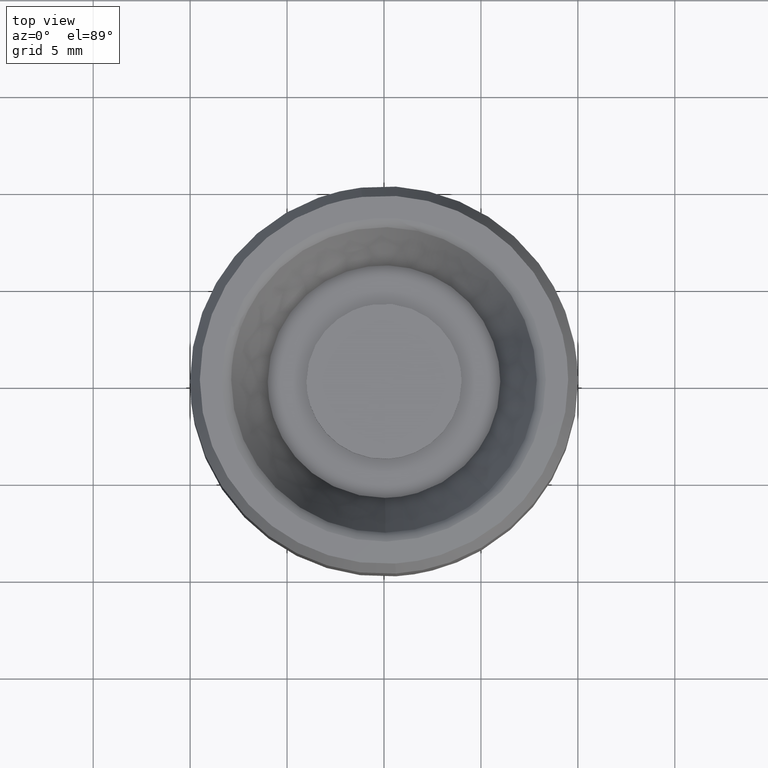
[diagram: clean part render]
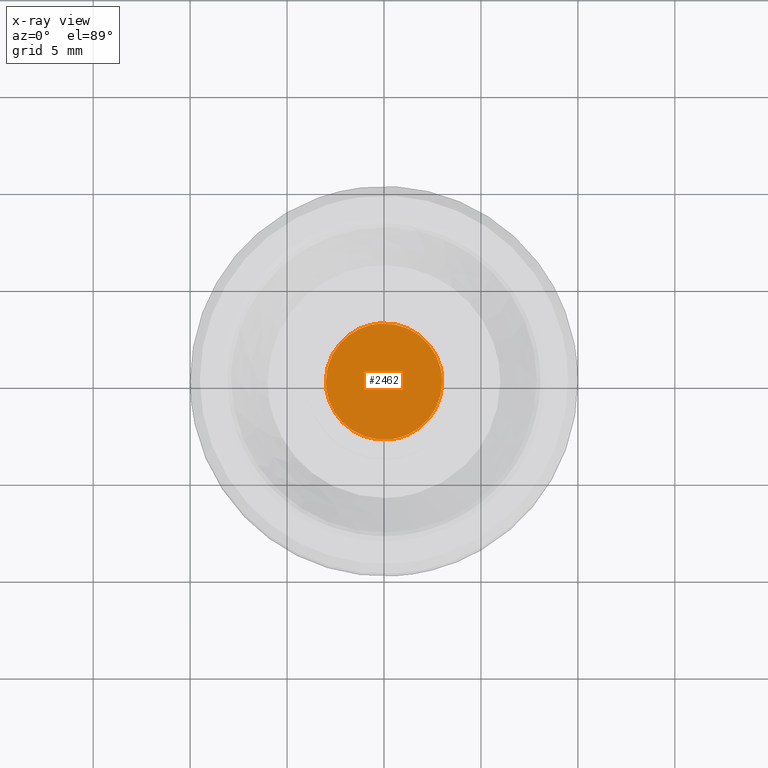
[diagram: x-ray — body ghosted, one internal face saturated and labeled with its STEP entity id]
A machine part, top view, then the same camera in x-ray: the body is ghosted and one INTERNAL B-rep face — a face not visible from any outside direction — is saturated and labeled: STEP entity #2462.
In plain terms, the highlighted face is a freeform B-spline surface patch.
Its self-contained STEP definition (entity closure, byte-faithful):
#1085=CARTESIAN_POINT('',(0.354102703987637,-2.979028579088936,9.500000000000000));
#1086=VERTEX_POINT('',#1085);
#1087=CARTESIAN_POINT('',(-3.0,0.0,9.500000000000000));
#1088=VERTEX_POINT('',#1087);
#1089=CARTESIAN_POINT('',(0.354102703987637,-2.979028579088936,9.500000000000000));
#1090=CARTESIAN_POINT('',(0.177672358973275,-3.000000000000000,9.500000000000000));
#1091=CARTESIAN_POINT('',(0.0,-3.0,9.500000000000000));
#1092=CARTESIAN_POINT('',(-3.0,-3.0,9.500000000000000));
#1093=CARTESIAN_POINT('',(-3.0,0.0,9.500000000000000));
#1101=(BOUNDED_CURVE()B_SPLINE_CURVE(2,(#1089,#1090,#1091,#1092,#1093),.UNSPECIFIED.,.F.,.U.)B_SPLINE_CURVE_WITH_KNOTS((3,2,3),(0.229562473513674,0.250000000000000,0.500000000000000),.UNSPECIFIED.)CURVE()GEOMETRIC_REPRESENTATION_ITEM()RATIONAL_B_SPLINE_CURVE((0.956026754184025,0.976055948331340,1.0,0.707106781186548,1.0))REPRESENTATION_ITEM(''));
#1102=EDGE_CURVE('',#1086,#1088,#1101,.T.);
#1143=CARTESIAN_POINT('',(-0.183145001911788,2.994404432984020,9.500000000000000));
#1144=VERTEX_POINT('',#1143);
#1150=CARTESIAN_POINT('',(-3.0,0.0,9.500000000000000));
#1151=CARTESIAN_POINT('',(-3.0,2.822119365310936,9.500000000000000));
#1152=CARTESIAN_POINT('',(-0.183145001911788,2.994404432984020,9.500000000000000));
#1160=(BOUNDED_CURVE()B_SPLINE_CURVE(2,(#1150,#1151,#1152),.UNSPECIFIED.,.F.,.U.)B_SPLINE_CURVE_WITH_KNOTS((3,3),(0.500000000000000,0.739333033313442),.UNSPECIFIED.)CURVE()GEOMETRIC_REPRESENTATION_ITEM()RATIONAL_B_SPLINE_CURVE((1.0,0.719603910017754,0.976072193992947))REPRESENTATION_ITEM(''));
#1161=EDGE_CURVE('',#1088,#1144,#1160,.T.);
#1184=CARTESIAN_POINT('',(3.0,0.0,9.500000000000000));
#1185=VERTEX_POINT('',#1184);
#1186=CARTESIAN_POINT('',(3.0,0.0,9.500000000000000));
#1187=CARTESIAN_POINT('',(3.000000000000000,-2.664523577822827,9.500000000000000));
#1188=CARTESIAN_POINT('',(0.354102703987637,-2.979028579088936,9.500000000000000));
#1196=(BOUNDED_CURVE()B_SPLINE_CURVE(2,(#1186,#1187,#1188),.UNSPECIFIED.,.F.,.U.)B_SPLINE_CURVE_WITH_KNOTS((3,3),(0.0,0.229562473513674),.UNSPECIFIED.)CURVE()GEOMETRIC_REPRESENTATION_ITEM()RATIONAL_B_SPLINE_CURVE((1.0,0.731050832855208,0.956026754184025))REPRESENTATION_ITEM(''));
#1197=EDGE_CURVE('',#1185,#1086,#1196,.T.);
#1199=CARTESIAN_POINT('',(-0.183145001911788,2.994404432984020,9.500000000000000));
#1200=CARTESIAN_POINT('',(-0.091657671473849,3.000000000000000,9.500000000000000));
#1201=CARTESIAN_POINT('',(0.0,3.0,9.500000000000000));
#1202=CARTESIAN_POINT('',(3.0,3.0,9.500000000000000));
#1203=CARTESIAN_POINT('',(3.0,0.0,9.500000000000000));
#1211=(BOUNDED_CURVE()B_SPLINE_CURVE(2,(#1199,#1200,#1201,#1202,#1203),.UNSPECIFIED.,.F.,.U.)B_SPLINE_CURVE_WITH_KNOTS((3,2,3),(0.739333033313442,0.750000000000000,1.0),.UNSPECIFIED.)CURVE()GEOMETRIC_REPRESENTATION_ITEM()RATIONAL_B_SPLINE_CURVE((0.976072193992947,0.987502871168793,1.0,0.707106781186548,1.0))REPRESENTATION_ITEM(''));
#1212=EDGE_CURVE('',#1144,#1185,#1211,.T.);
#2451=CARTESIAN_POINT('',(-3.299699988370835,-3.299645593606510,9.500000000000000));
#2452=CARTESIAN_POINT('',(3.299700149303376,-3.299645593606509,9.500000000000000));
#2453=CARTESIAN_POINT('',(-3.299699988370835,3.299626979075947,9.500000000000000));
#2454=CARTESIAN_POINT('',(3.299700149303376,3.299626979075947,9.500000000000000));
#2455=B_SPLINE_SURFACE_WITH_KNOTS('',1,1,((#2451,#2453),(#2452,#2454)),.UNSPECIFIED.,.F.,.F.,.U.,(2,2),(2,2),(0.0,6.599400137674212),(0.0,6.599272572682456),.UNSPECIFIED.);
#2456=ORIENTED_EDGE('',*,*,#1197,.T.);
#2457=ORIENTED_EDGE('',*,*,#1102,.T.);
#2458=ORIENTED_EDGE('',*,*,#1161,.T.);
#2459=ORIENTED_EDGE('',*,*,#1212,.T.);
#2460=EDGE_LOOP('',(#2456,#2457,#2458,#2459));
#2461=FACE_OUTER_BOUND('',#2460,.T.);
#2462=ADVANCED_FACE('',(#2461),#2455,.F.);